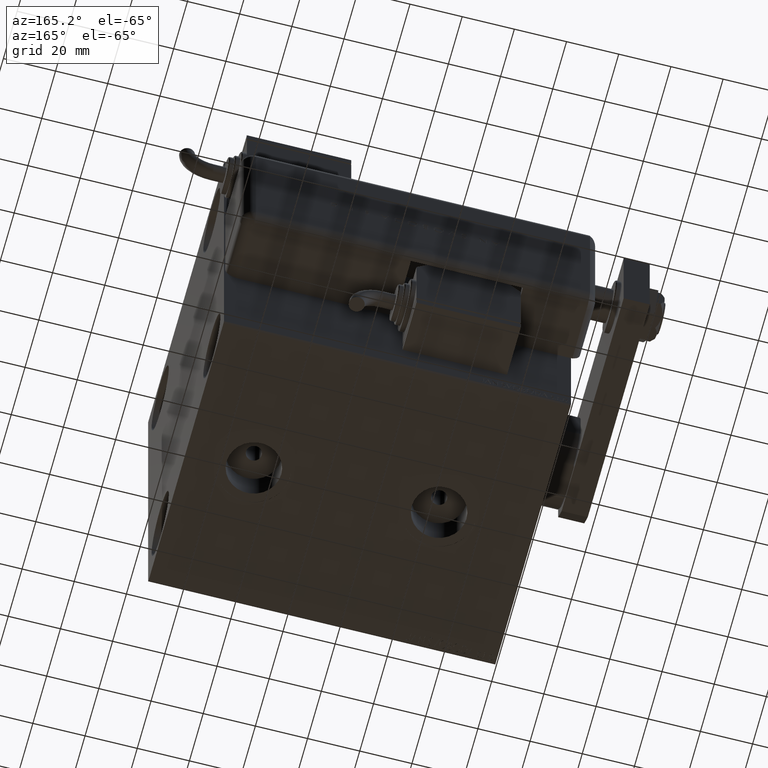
[diagram: clean part render]
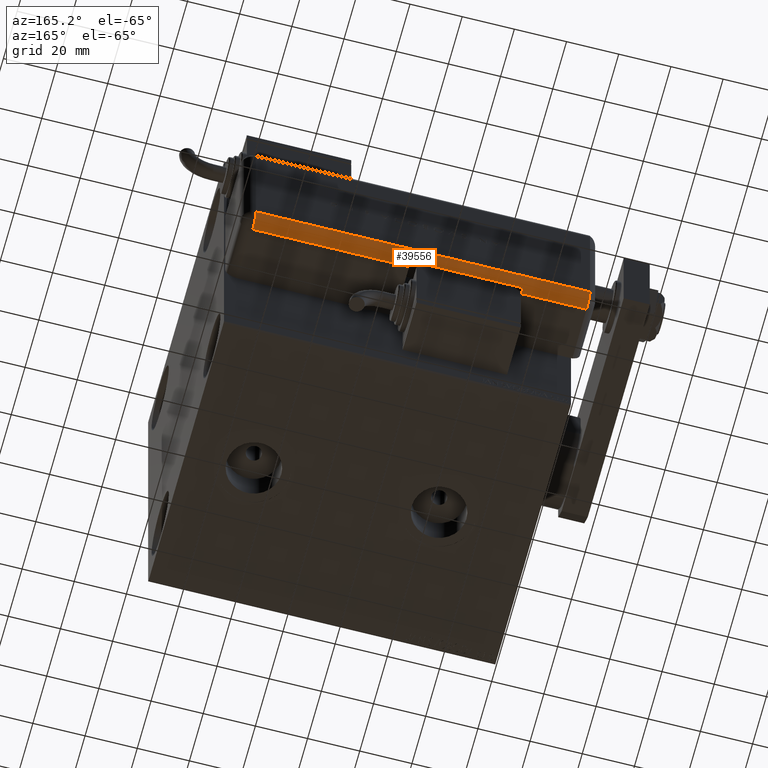
[diagram: same view with one face highlighted and labeled with its STEP entity id]
A machine part, auxiliary view. The second image highlights one B-rep face of the part: STEP entity #39556.
In plain terms, the highlighted cylindrical surface (edge-blend (fillet) strip) has radius 5 mm, axis along (1, -0, -0).
Its self-contained STEP definition (entity closure, byte-faithful):
#918 = DIRECTION ( 'NONE',  ( -0.000000000000000000, -0.000000000000000000, 1.000000000000000000 ) ) ;
#1248 = VERTEX_POINT ( 'NONE', #21743 ) ;
#1363 = CARTESIAN_POINT ( 'NONE',  ( -23.99999999999999645, 20.79999999999998295, 108.0000000000000142 ) ) ;
#4156 = EDGE_CURVE ( 'NONE', #1248, #11432, #35531, .T. ) ;
#5146 = CARTESIAN_POINT ( 'NONE',  ( -28.99999999999999645, 20.79999999999998295, 65.00000000000001421 ) ) ;
#8127 = CARTESIAN_POINT ( 'NONE',  ( -23.99999999999999645, 25.79999999999998295, 5.000000000000004441 ) ) ;
#9584 = CARTESIAN_POINT ( 'NONE',  ( -23.99999999999999645, 25.79999999999998295, 133.0000000000000000 ) ) ;
#10130 = EDGE_CURVE ( 'NONE', #45523, #45486, #34689, .T. ) ;
#11258 = CIRCLE ( 'NONE', #54675, 5.000000000000000888 ) ;
#11432 = VERTEX_POINT ( 'NONE', #5146 ) ;
#12127 = CARTESIAN_POINT ( 'NONE',  ( -28.99999999999999645, 20.79999999999998295, 133.0000000000000000 ) ) ;
#12749 = VERTEX_POINT ( 'NONE', #40741 ) ;
#14262 = DIRECTION ( 'NONE',  ( -1.000000000000000000, 0.000000000000000000, 0.000000000000000000 ) ) ;
#15509 = ORIENTED_EDGE ( 'NONE', *, *, #42222, .F. ) ;
#15668 = EDGE_CURVE ( 'NONE', #11432, #45486, #25563, .T. ) ;
#15787 = VERTEX_POINT ( 'NONE', #56972 ) ;
#17112 = EDGE_CURVE ( 'NONE', #15787, #32491, #11258, .T. ) ;
#17648 = ORIENTED_EDGE ( 'NONE', *, *, #17112, .F. ) ;
#17976 = DIRECTION ( 'NONE',  ( 0.000000000000000000, 0.000000000000000000, -1.000000000000000000 ) ) ;
#18358 = CARTESIAN_POINT ( 'NONE',  ( -23.99999999999999645, 20.79999999999998295, 65.00000000000001421 ) ) ;
#18788 = AXIS2_PLACEMENT_3D ( 'NONE', #18358, #28541, #36935 ) ;
#19181 = ORIENTED_EDGE ( 'NONE', *, *, #19924, .F. ) ;
#19443 = DIRECTION ( 'NONE',  ( -0.000000000000000000, -0.000000000000000000, 1.000000000000000000 ) ) ;
#19924 = EDGE_CURVE ( 'NONE', #12749, #15787, #27252, .T. ) ;
#20012 = CARTESIAN_POINT ( 'NONE',  ( -23.99999999999999645, 20.79999999999998295, 5.000000000000004441 ) ) ;
#21743 = CARTESIAN_POINT ( 'NONE',  ( -28.48998886412872267, 22.99999999999998934, 65.00000000000001421 ) ) ;
#21942 = EDGE_LOOP ( 'NONE', ( #23889, #58104, #17648, #19181, #37940, #15509, #51501, #54211 ) ) ;
#22053 = VECTOR ( 'NONE', #57729, 1000.000000000000000 ) ;
#22619 = CARTESIAN_POINT ( 'NONE',  ( -23.99999999999999645, 20.79999999999998295, 133.0000000000000000 ) ) ;
#23378 = VECTOR ( 'NONE', #33047, 1000.000000000000000 ) ;
#23889 = ORIENTED_EDGE ( 'NONE', *, *, #4156, .F. ) ;
#24563 = VERTEX_POINT ( 'NONE', #53661 ) ;
#24688 = DIRECTION ( 'NONE',  ( -1.000000000000000000, 0.000000000000000000, 0.000000000000000000 ) ) ;
#25147 = VECTOR ( 'NONE', #17976, 1000.000000000000000 ) ;
#25563 = LINE ( 'NONE', #29282, #22053 ) ;
#27252 = LINE ( 'NONE', #12127, #25147 ) ;
#28108 = LINE ( 'NONE', #46972, #23378 ) ;
#28541 = DIRECTION ( 'NONE',  ( -0.000000000000000000, -0.000000000000000000, 1.000000000000000000 ) ) ;
#28722 = AXIS2_PLACEMENT_3D ( 'NONE', #20012, #42309, #56818 ) ;
#29282 = CARTESIAN_POINT ( 'NONE',  ( -28.99999999999999645, 20.79999999999998295, 133.0000000000000000 ) ) ;
#32491 = VERTEX_POINT ( 'NONE', #51654 ) ;
#33047 = DIRECTION ( 'NONE',  ( 0.000000000000000000, 0.000000000000000000, -1.000000000000000000 ) ) ;
#33372 = LINE ( 'NONE', #9584, #58018 ) ;
#34411 = DIRECTION ( 'NONE',  ( 0.000000000000000000, -0.000000000000000000, -1.000000000000000000 ) ) ;
#34689 = CIRCLE ( 'NONE', #28722, 5.000000000000000888 ) ;
#35531 = CIRCLE ( 'NONE', #18788, 5.000000000000000888 ) ;
#36864 = CYLINDRICAL_SURFACE ( 'NONE', #51150, 5.000000000000000888 ) ;
#36935 = DIRECTION ( 'NONE',  ( -1.000000000000000000, 4.163336342344336238E-15, 0.000000000000000000 ) ) ;
#37940 = ORIENTED_EDGE ( 'NONE', *, *, #46991, .F. ) ;
#39556 = ADVANCED_FACE ( 'NONE', ( #46438 ), #36864, .T. ) ;
#39871 = EDGE_CURVE ( 'NONE', #32491, #1248, #28108, .T. ) ;
#40741 = CARTESIAN_POINT ( 'NONE',  ( -28.99999999999999645, 20.79999999999998295, 133.0000000000000000 ) ) ;
#41451 = CIRCLE ( 'NONE', #53306, 5.000000000000000888 ) ;
#42222 = EDGE_CURVE ( 'NONE', #45523, #24563, #33372, .T. ) ;
#42309 = DIRECTION ( 'NONE',  ( -0.000000000000000000, -0.000000000000000000, 1.000000000000000000 ) ) ;
#45486 = VERTEX_POINT ( 'NONE', #48021 ) ;
#45523 = VERTEX_POINT ( 'NONE', #8127 ) ;
#46438 = FACE_OUTER_BOUND ( 'NONE', #21942, .T. ) ;
#46972 = CARTESIAN_POINT ( 'NONE',  ( -28.48998886412872267, 22.99999999999998934, 133.0000000000000000 ) ) ;
#46991 = EDGE_CURVE ( 'NONE', #24563, #12749, #41451, .T. ) ;
#48021 = CARTESIAN_POINT ( 'NONE',  ( -28.99999999999999645, 20.79999999999998295, 5.000000000000004441 ) ) ;
#48509 = CARTESIAN_POINT ( 'NONE',  ( -23.99999999999999645, 20.79999999999998295, 133.0000000000000000 ) ) ;
#51150 = AXIS2_PLACEMENT_3D ( 'NONE', #22619, #55712, #14262 ) ;
#51501 = ORIENTED_EDGE ( 'NONE', *, *, #10130, .T. ) ;
#51654 = CARTESIAN_POINT ( 'NONE',  ( -28.48998886412872267, 22.99999999999998934, 108.0000000000000142 ) ) ;
#53269 = DIRECTION ( 'NONE',  ( 1.000000000000000000, 0.000000000000000000, 0.000000000000000000 ) ) ;
#53306 = AXIS2_PLACEMENT_3D ( 'NONE', #48509, #918, #24688 ) ;
#53661 = CARTESIAN_POINT ( 'NONE',  ( -23.99999999999999645, 25.79999999999998295, 133.0000000000000000 ) ) ;
#54211 = ORIENTED_EDGE ( 'NONE', *, *, #15668, .F. ) ;
#54675 = AXIS2_PLACEMENT_3D ( 'NONE', #1363, #34411, #53269 ) ;
#55712 = DIRECTION ( 'NONE',  ( 0.000000000000000000, 0.000000000000000000, -1.000000000000000000 ) ) ;
#56818 = DIRECTION ( 'NONE',  ( -1.000000000000000000, 0.000000000000000000, 0.000000000000000000 ) ) ;
#56972 = CARTESIAN_POINT ( 'NONE',  ( -28.99999999999999645, 20.79999999999998295, 108.0000000000000142 ) ) ;
#57729 = DIRECTION ( 'NONE',  ( 0.000000000000000000, 0.000000000000000000, -1.000000000000000000 ) ) ;
#58018 = VECTOR ( 'NONE', #19443, 1000.000000000000000 ) ;
#58104 = ORIENTED_EDGE ( 'NONE', *, *, #39871, .F. ) ;